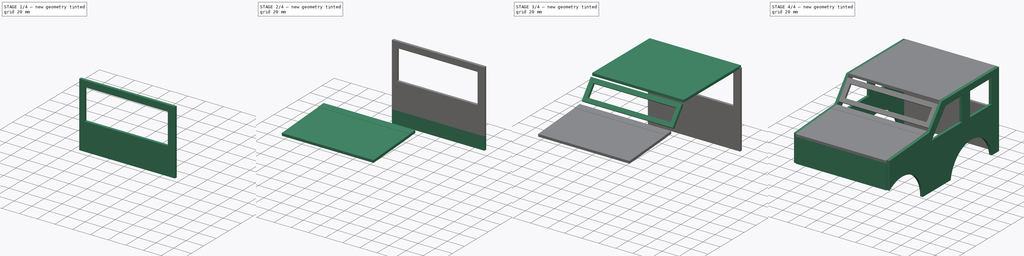
[diagram: build sequence overview — one tinted view per stage of 4, left to right]
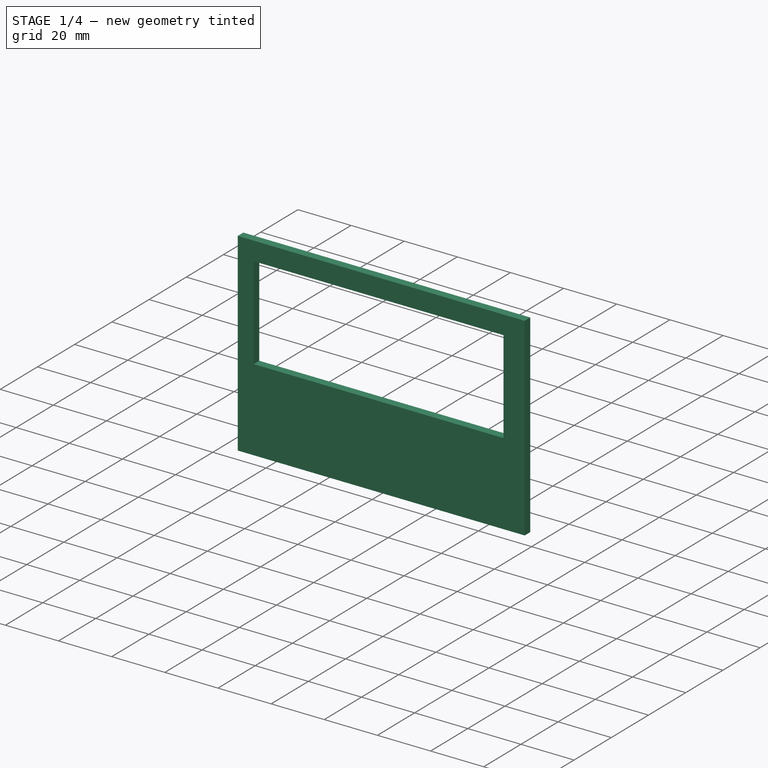
[diagram: stage 1 of 4 — iso view after this stage's code; geometry added in this stage tinted green]
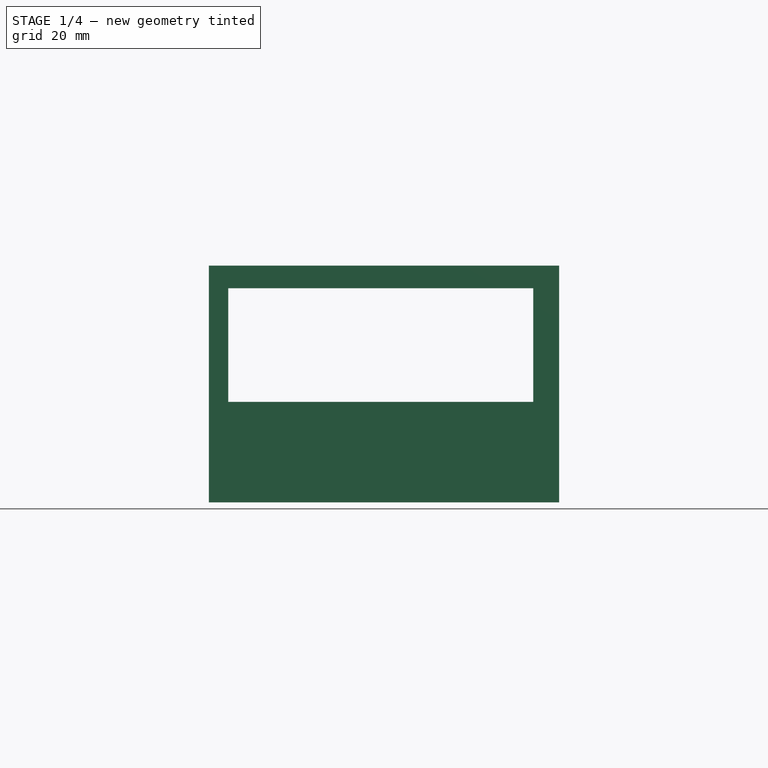
[diagram: stage 1 of 4 — front view after this stage's code; geometry added in this stage tinted green]
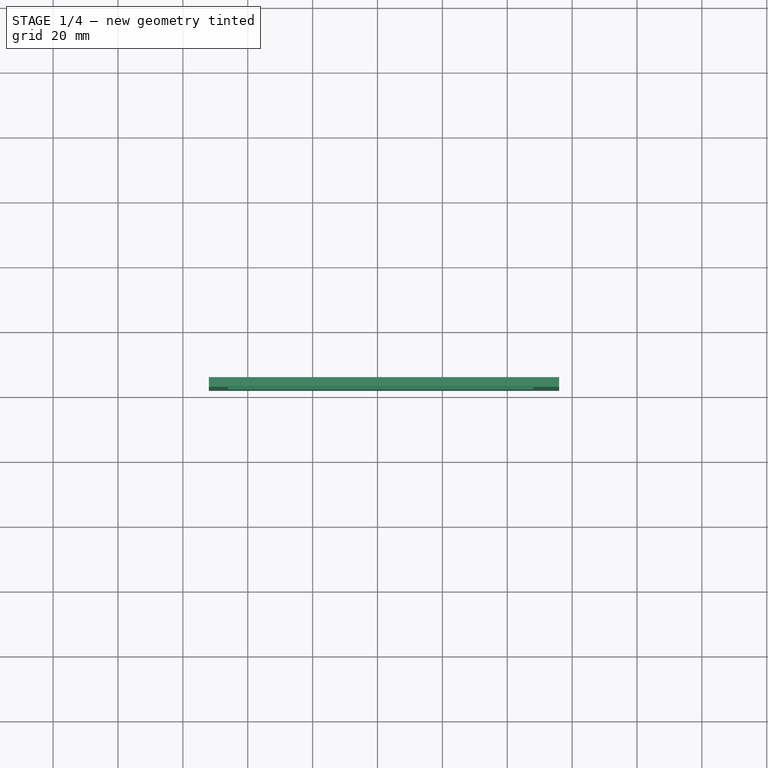
[diagram: stage 1 of 4 — top view after this stage's code; geometry added in this stage tinted green]
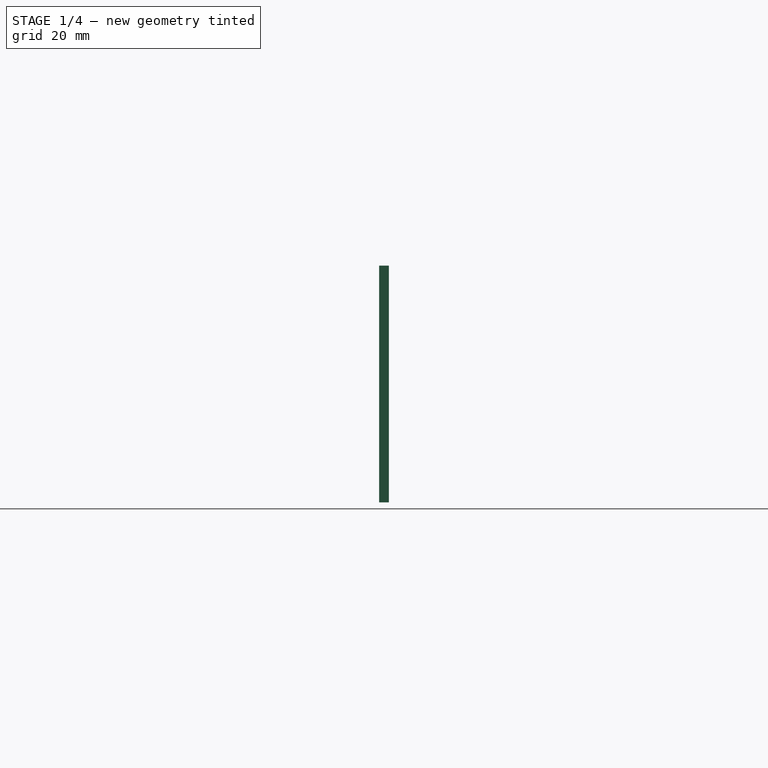
[diagram: stage 1 of 4 — right view after this stage's code; geometry added in this stage tinted green]
FCSTD DOCUMENT  (FreeCAD 0.18R16131 (Git))
Label: Esquema carroceria
License: All rights reserved
LicenseURL: http://en.wikipedia.org/wiki/All_rights_reserved
objects: Part::Box×6, Sketcher::SketchObject×5, Part::Extrusion×5, Part::Cut×2, PartDesign::Body×1, Part::Part2DObjectPython×1, Part::Feature×1
note: 21 computed .brp shape members not serialized (recipe doc carries the construction recipe); baked Part::Feature solids carry a one-line shape summary decoded from their .brp

FEATURE [Part::Box] Box004  label="Cubo004"
  AttacherType = Attacher::AttachEngine3D
  Height = 73
  Length = 108
  Placement = pos=(-52,0,-52) rot=(0,0,1;0rad)
  Width = 3
FEATURE [Part::Box] Box005  label="Cubo005"
  AttacherType = Attacher::AttachEngine3D
  Height = 35
  Length = 94
  Placement = pos=(-46,0,-21) rot=(0,0,1;0rad)
  Width = 3
FEATURE [Part::Cut] Cut001
  Base = -> Box004
  Placement = pos=(0,82,0) rot=(0,0,1;0rad)
  Tool = -> Box005
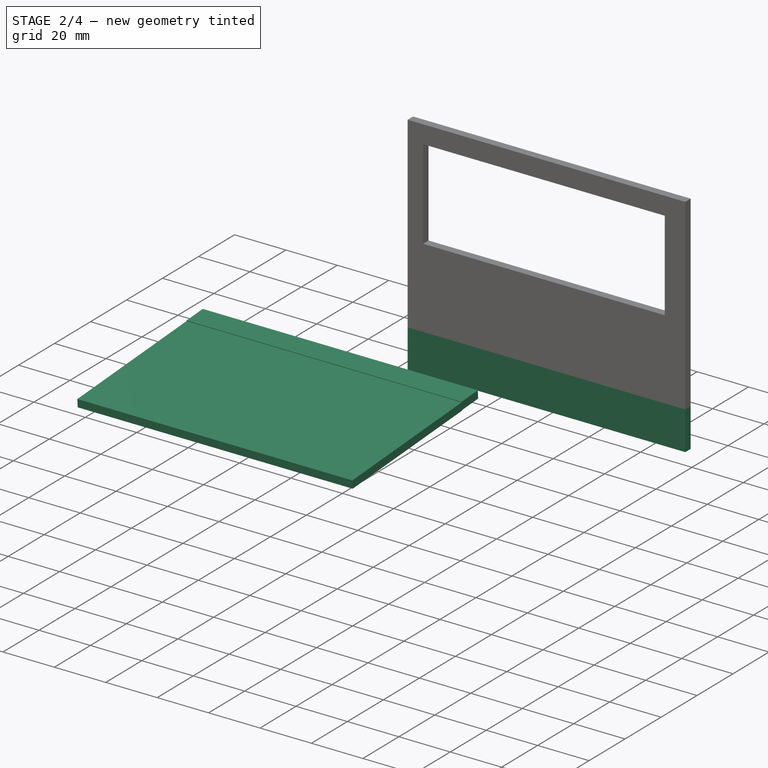
[diagram: stage 2 of 4 — iso view after this stage's code; geometry added in this stage tinted green]
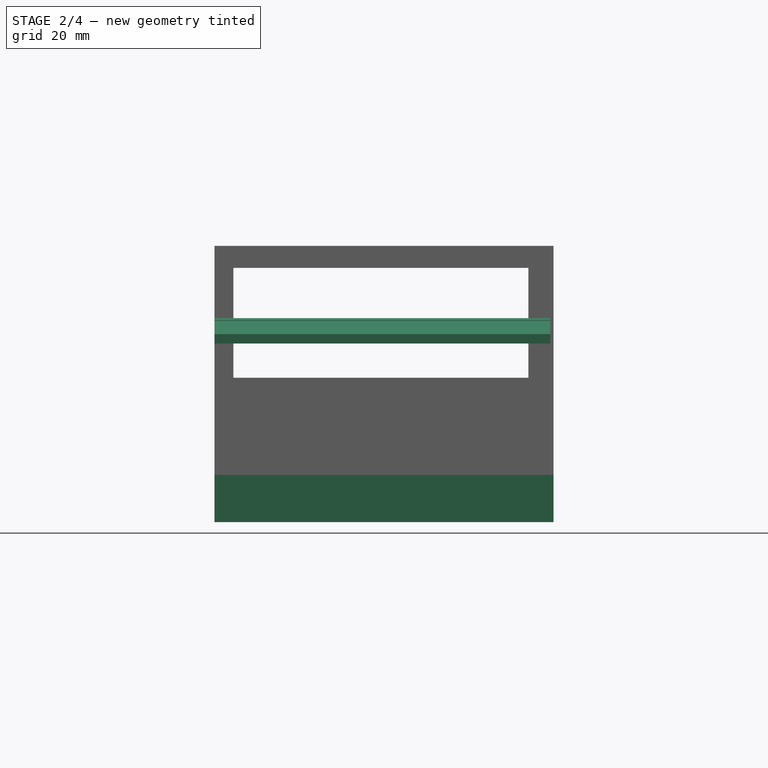
[diagram: stage 2 of 4 — front view after this stage's code; geometry added in this stage tinted green]
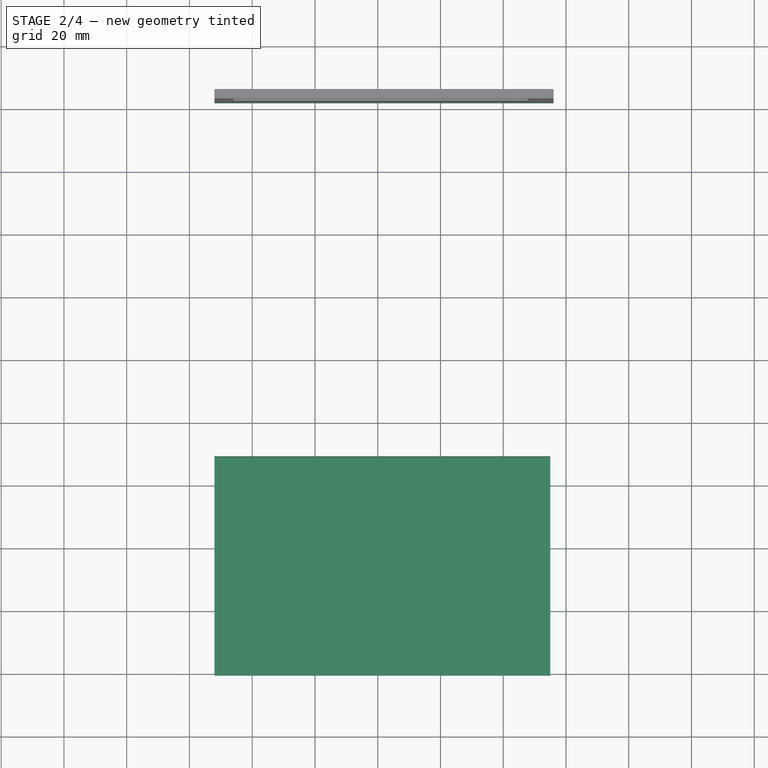
[diagram: stage 2 of 4 — top view after this stage's code; geometry added in this stage tinted green]
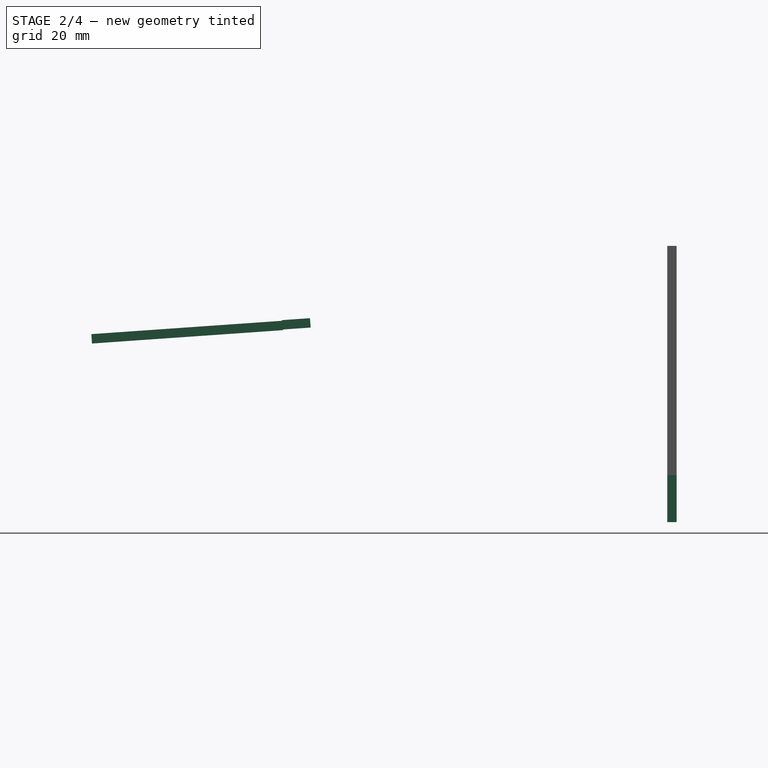
[diagram: stage 2 of 4 — right view after this stage's code; geometry added in this stage tinted green]
FEATURE [Part::Box] Box001  label="Cubo001"
  AttacherType = Attacher::AttachEngine3D
  Height = 3
  Length = 107
  Placement = pos=(-52,-101.333,-10.1005) rot=(1,0,0;0.069813rad)
  Width = 61
FEATURE [Part::Box] Box002  label="Cubo002"
  AttacherType = Attacher::AttachEngine3D
  Height = 3
  Length = 107
  Placement = pos=(-52,-40.6284,-5.641) rot=(1,0,0;0.069813rad)
  Width = 9
FEATURE [Part::Box] Box003  label="Cubo003"
  AttacherType = Attacher::AttachEngine3D
  Height = 15
  Length = 108
  Placement = pos=(-52,82,-67) rot=(0,0,1;0rad)
  Width = 3
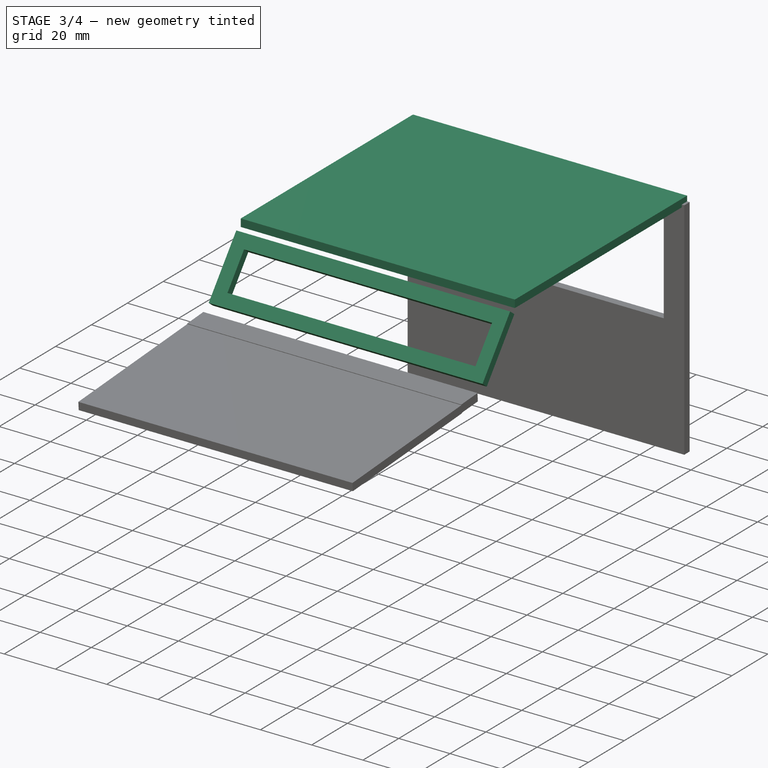
[diagram: stage 3 of 4 — iso view after this stage's code; geometry added in this stage tinted green]
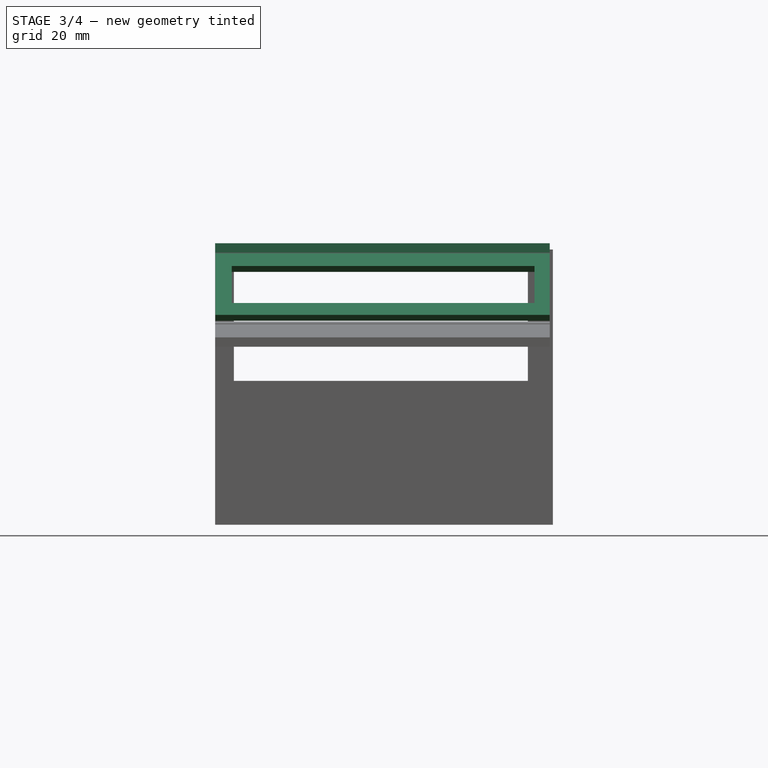
[diagram: stage 3 of 4 — front view after this stage's code; geometry added in this stage tinted green]
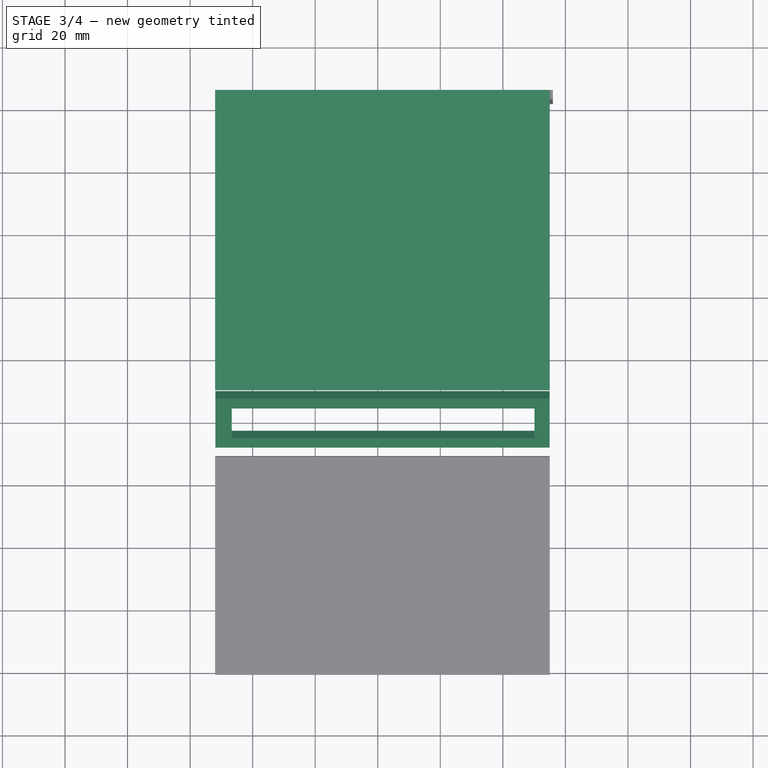
[diagram: stage 3 of 4 — top view after this stage's code; geometry added in this stage tinted green]
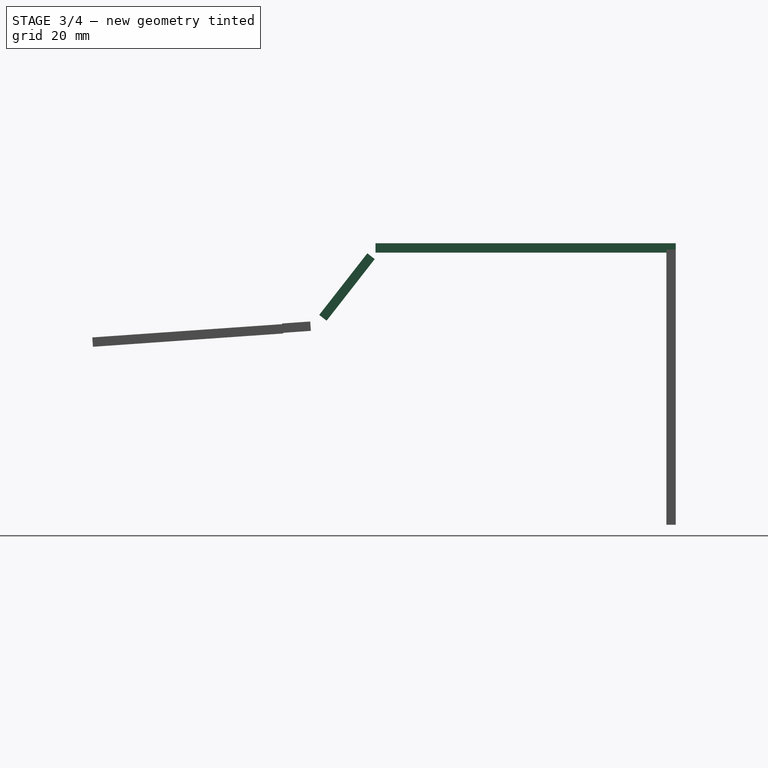
[diagram: stage 3 of 4 — right view after this stage's code; geometry added in this stage tinted green]
FEATURE [Part::Part2DObjectPython] Wire001  # Draft 2D object (typed FeaturePython)
  ChamferSize = 0
  Closed = false
  End = (-51.3404,-32.8804,-2.66469)
  FilletRadius = 0
  Length = 236.75
  MakeFace = false
  Placement = pos=(-51.9457,-32.8837,-2.66732) rot=(0,0,1;0rad)
  Points = (5) [(0,0,0),(-0.0542946,-11.1769,-0.768642),(106.946,-11.5577,-0.794739),(106.946,0.580196,0.464836),(0.605309,0.00328445,0.00263023)]
  Start = (-51.9457,-32.8837,-2.66732)
  Subdivisions = 0
FEATURE [Part::Feature] Wire
  shape: bbox 107 x 21.55 x 25.4 mm, 0 faces, 0 solids (baked)
FEATURE [Part::Box] Box  label="Cubo"
  AttacherType = Attacher::AttachEngine3D
  Height = 3
  Length = 107
  Placement = pos=(-52,-11,20) rot=(0,0,1;0rad)
  Width = 96
FEATURE [Sketcher::SketchObject] Sketch003
  MapMode = 5
  Placement = pos=(0,0,0) rot=(1,0,0;1.5708rad)
  Support = -> [XZ_Plane001]
  sketch-geometry (4):
    g0: LineSegment StartX=-51.9242 StartY=-10.5332 StartZ=0 EndX=54.9569 EndY=-10.5332 EndZ=0
    g1: LineSegment StartX=54.9569 StartY=-10.5332 StartZ=0 EndX=54.9569 EndY=-35.5332 EndZ=0
    g2: LineSegment StartX=54.9569 StartY=-35.5332 StartZ=0 EndX=-51.9242 EndY=-35.5332 EndZ=0
    g3: LineSegment StartX=-51.9242 StartY=-35.5332 StartZ=0 EndX=-51.9242 EndY=-10.5332 EndZ=0
  constraints (9):
    c: Coincident(g0,g1)
    c: Coincident(g1,g2)
    c: Coincident(g2,g3)
    c: Coincident(g3,g0)
    c: Horizontal(g0)
    c: Horizontal(g2)
    c: Vertical(g1)
    c: Vertical(g3)
    c: DistanceY(g1,g1) = 25
FEATURE [Part::Extrusion] Extrude003
  Base = -> Sketch003
  Dir = (0,-1,-2e-16)
  DirMode = 2
  FaceMakerClass = Part::FaceMakerBullseye
  LengthFwd = 3
  LengthRev = 0
  Placement = pos=(0,-28,33) rot=(0,0,1;0rad)
  Solid = true
  Symmetric = false
FEATURE [Sketcher::SketchObject] Sketch004
  MapMode = 5
  Placement = pos=(0,0,0) rot=(1,0,0;1.5708rad)
  Support = -> [XZ_Plane002]
  sketch-geometry (4):
    g0: LineSegment StartX=-44.6715 StartY=-17.7047 StartZ=0 EndX=52.1285 EndY=-17.7047 EndZ=0
    g1: LineSegment StartX=52.1285 StartY=-17.7047 StartZ=0 EndX=52.1285 EndY=-32.7047 EndZ=0
    g2: LineSegment StartX=52.1285 StartY=-32.7047 StartZ=0 EndX=-44.6715 EndY=-32.7047 EndZ=0
    g3: LineSegment StartX=-44.6715 StartY=-32.7047 StartZ=0 EndX=-44.6715 EndY=-17.7047 EndZ=0
  constraints (10):
    c: Coincident(g0,g1)
    c: Coincident(g1,g2)
    c: Coincident(g2,g3)
    c: Coincident(g3,g0)
    c: Horizontal(g0)
    c: Horizontal(g2)
    c: Vertical(g1)
    c: Vertical(g3)
    c: DistanceY(g1,g1) = 15
    c: DistanceX(g0,g0) = 96.8
FEATURE [Part::Extrusion] Extrude004
  Base = -> Sketch004
  Dir = (0,-1,-2e-16)
  DirMode = 2
  FaceMakerClass = Part::FaceMakerBullseye
  LengthFwd = 3
  LengthRev = 0
  Placement = pos=(-2,-28,35) rot=(0,0,1;0rad)
  Solid = true
  Symmetric = false
FEATURE [Part::Cut] Cut
  Base = -> Extrude003
  Placement = pos=(0,-3,-17) rot=(1,0,0;5.61996rad)
  Tool = -> Extrude004
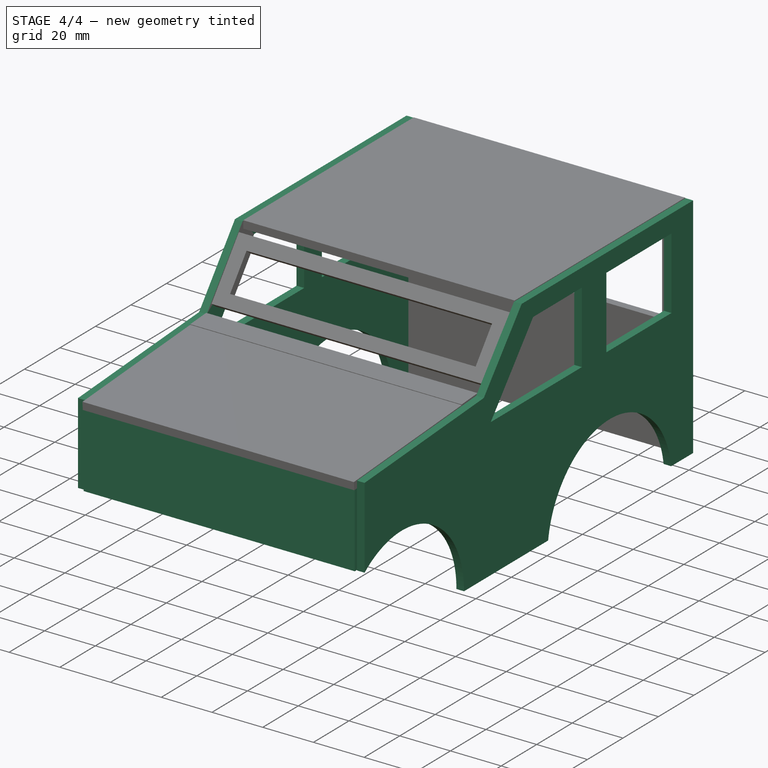
[diagram: stage 4 of 4 — iso view after this stage's code; geometry added in this stage tinted green]
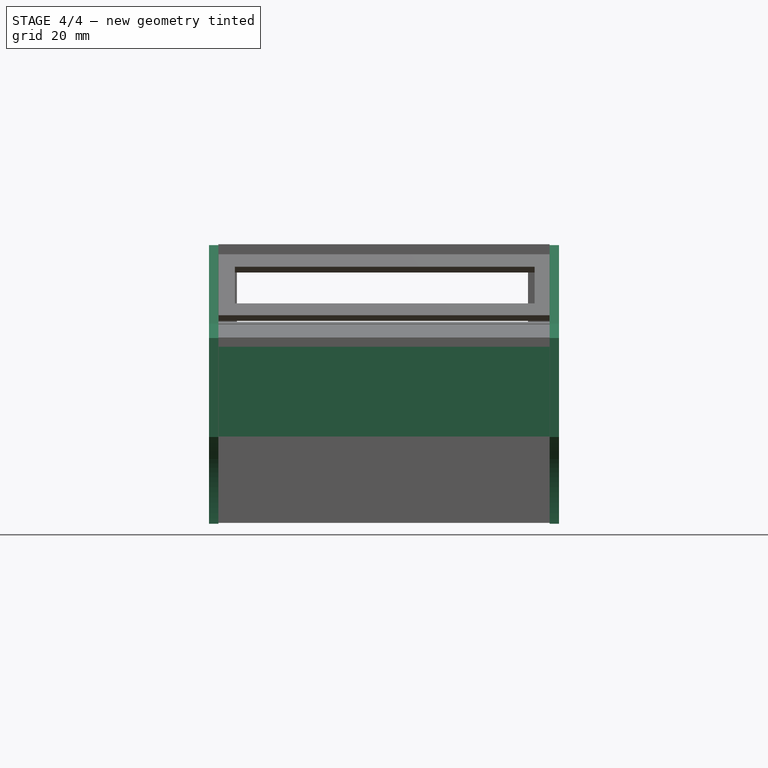
[diagram: stage 4 of 4 — front view after this stage's code; geometry added in this stage tinted green]
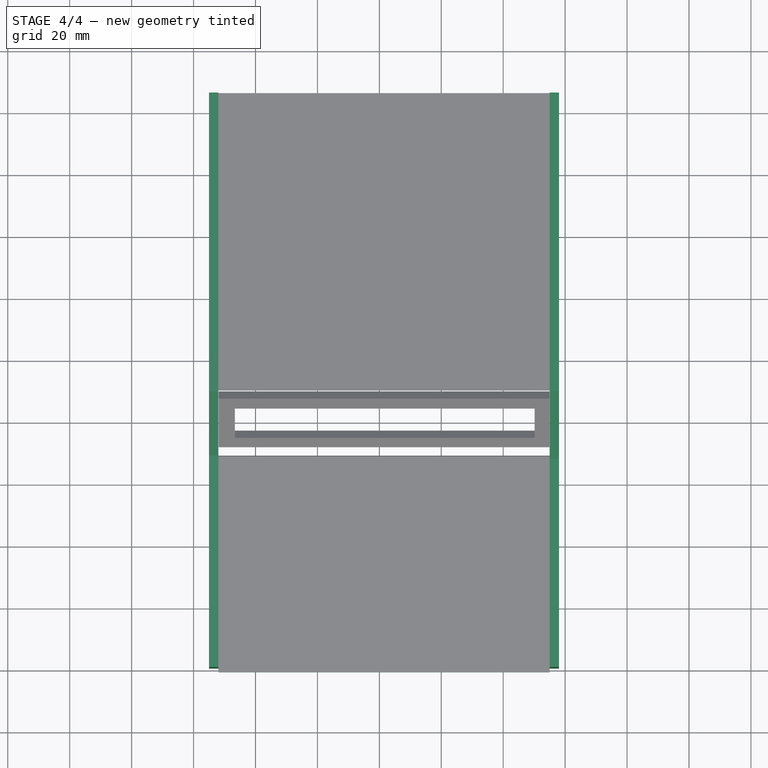
[diagram: stage 4 of 4 — top view after this stage's code; geometry added in this stage tinted green]
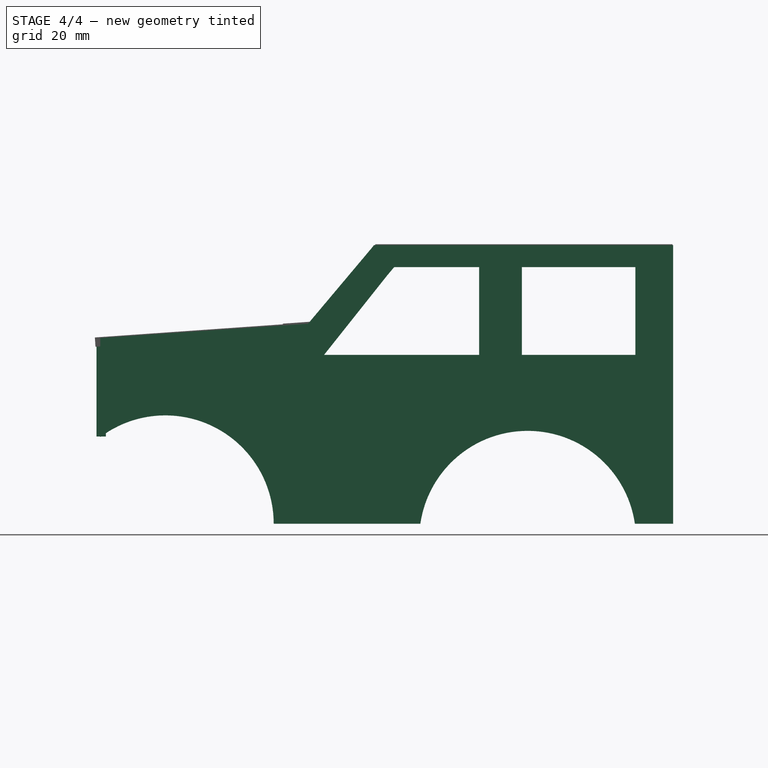
[diagram: stage 4 of 4 — right view after this stage's code; geometry added in this stage tinted green]
FEATURE [Sketcher::SketchObject] Sketch
  MapMode = 5
  Placement = pos=(0,0,0) rot=(0.57735,0.57735,0.57735;2.0944rad)
  Support = -> [YZ_Plane]
  sketch-geometry (26):
    g0: LineSegment StartX=-11.3855 StartY=22.7333 StartZ=0 EndX=85.2212 EndY=22.7333 EndZ=0
    g1: LineSegment StartX=85.2212 StartY=22.7333 StartZ=0 EndX=85.2212 EndY=-67.2667 EndZ=0
    g2: LineSegment StartX=85.2212 StartY=-67.2667 StartZ=0 EndX=72.8622 EndY=-67.2667 EndZ=0
    g3: LineSegment StartX=-99.7788 StartY=-39.2667 StartZ=0 EndX=-99.7788 EndY=-7.26667 EndZ=0
    g4: LineSegment StartX=-31.5572 StartY=-2.65373 StartZ=0 EndX=-99.7788 EndY=-7.26667 EndZ=0
    g5: LineSegment StartX=-31.5572 StartY=-2.65373 StartZ=0 EndX=-11.3855 EndY=22.7333 EndZ=0
    g6: ArcOfCircle CenterX=-78.7788 CenterY=-67.2667 CenterZ=0 NormalX=0 NormalY=0 NormalZ=1 AngleXU=0 Radius=35 StartAngle=-1.8e-15 EndAngle=2.2143
    g7: ArcOfCircle CenterX=38.2212 CenterY=-72.2667 CenterZ=0 NormalX=0 NormalY=0 NormalZ=1 AngleXU=0 Radius=35 StartAngle=0.143348 EndAngle=2.99825
    g8: LineSegment StartX=3.58017 StartY=-67.2667 StartZ=0 EndX=-43.7788 EndY=-67.2667 EndZ=0
    g9: LineSegment [constr] StartX=-111.659 StartY=-37.2667 StartZ=0 EndX=145.27 EndY=-37.2667 EndZ=0
    g10: LineSegment StartX=-4.88161 StartY=15.7631 StartZ=0 EndX=23.2908 EndY=15.7631 EndZ=0
    g11: LineSegment StartX=23.2908 StartY=15.7631 StartZ=0 EndX=23.2908 EndY=-14.2369 EndZ=0
    g12: LineSegment StartX=23.2908 StartY=-14.2369 StartZ=0 EndX=-28.7186 EndY=-14.2369 EndZ=0
    g13: LineSegment StartX=-28.7186 StartY=-14.2369 StartZ=0 EndX=-4.88161 EndY=15.7631 EndZ=0
    g14: LineSegment StartX=33.2908 StartY=15.7631 StartZ=0 EndX=33.2908 EndY=-14.2369 EndZ=0
    g15: LineSegment StartX=33.2908 StartY=-14.2369 StartZ=0 EndX=73.0066 EndY=-14.2369 EndZ=0
    g16: LineSegment StartX=73.0066 StartY=-14.2369 StartZ=0 EndX=73.0066 EndY=15.7631 EndZ=0
    g17: LineSegment StartX=73.0066 StartY=15.7631 StartZ=0 EndX=33.2908 EndY=15.7631 EndZ=0
    g18: LineSegment [constr] StartX=-10.6744 StartY=19.2065 StartZ=0 EndX=28.5559 EndY=19.2065 EndZ=0
    g19: LineSegment [constr] StartX=28.5559 StartY=-45.2432 StartZ=0 EndX=-5.71669 EndY=-45.2432 EndZ=0
    g20: LineSegment [constr] StartX=-5.71669 StartY=-45.2432 StartZ=0 EndX=-41.2826 EndY=-21.5326 EndZ=0
    g21: LineSegment [constr] StartX=-41.2826 StartY=-21.5326 StartZ=0 EndX=-10.6744 EndY=19.2065 EndZ=0
    g22: LineSegment [constr] StartX=28.5559 StartY=19.2065 StartZ=0 EndX=28.5559 EndY=-45.2432 EndZ=0
    g23: Circle [constr] CenterX=-78.7788 CenterY=-67.2667 CenterZ=0 NormalX=0 NormalY=0 NormalZ=1 AngleXU=0 Radius=27.5
    g24: Circle [constr] CenterX=38.2212 CenterY=-72.2667 CenterZ=0 NormalX=0 NormalY=0 NormalZ=1 AngleXU=0 Radius=27.5
    g25: LineSegment [constr] StartX=126.416 StartY=-45.2667 StartZ=0 EndX=-97.5413 EndY=-45.2667 EndZ=0
  constraints (60):
    c: Coincident(g0,g1)
    c: Coincident(g1,g2)
    c: Horizontal(g0)
    c: Horizontal(g2)
    c: Vertical(g1)
    c: Vertical(g3)
    c: DistanceY(g1,g1) = 90
    c: Coincident(g5,g4)
    c: Coincident(g3,g4)
    c: Coincident(g0,g5)
    c: PointOnObject(g6,g2)
    c: PointOnObject(g6,g2)
    c: Radius(g6) = 35
    c: Equal(g7,g6)
    c: DistanceX(g3,g0) = 185
    c: Coincident(g8,g7)
    c: Tangent(g2,g8)
    c: PointOnObject(g8,g6)
    c: DistanceX(g7,g1) = 47
    c: Coincident(g2,g7)
    c: Horizontal(g9)
    c: Tangent(g7,g9)
    c: DistanceY(g1,g9) = 30
    c: Coincident(g3,g6)
    c: Horizontal(g10)
    c: Coincident(g10,g11)
    c: Vertical(g11)
    c: Coincident(g11,g12)
    c: Horizontal(g12)
    c: Coincident(g12,g13)
    c: Coincident(g13,g10)
    c: Vertical(g14)
    c: Coincident(g14,g15)
    c: Horizontal(g15)
    c: Coincident(g15,g16)
    c: Vertical(g16)
    c: Coincident(g16,g17)
    c: Coincident(g17,g14)
    c: Horizontal(g17)
    c: Equal(g11,g14)
    c: Parallel(g13,g5)
    c: Horizontal(g18)
    c: Horizontal(g19)
    c: Coincident(g19,g20)
    c: Coincident(g20,g21)
    c: Coincident(g21,g18)
    c: Vertical(g22)
    c: Coincident(g23,g6)
    c: Coincident(g24,g7)
    c: Radius(g23) = 27.5
    c: Equal(g23,g24)
    c: Coincident(g18,g22)
    c: Coincident(g19,g22)
    c: Horizontal(g25)
    c: DistanceY(g7,g25) = 27
    c: DistanceX(g6,g7) = 117
    c: DistanceY(g6,g3) = 60
    c: DistanceY(g14,g10) = 0
    c: DistanceY(g16,g16) = 30
    c: DistanceX(g10,g14) = 10
FEATURE [Part::Extrusion] Extrude
  Base = -> Sketch
  Dir = (1,-2e-16,3e-16)
  DirMode = 2
  FaceMakerClass = Part::FaceMakerBullseye
  LengthFwd = 3
  LengthRev = 0
  Placement = pos=(-55,0,0) rot=(0,0,1;0rad)
  Solid = true
  Symmetric = false
FEATURE [Sketcher::SketchObject] Sketch001
  MapMode = 5
  Placement = pos=(0,0,0) rot=(0.57735,0.57735,0.57735;2.0944rad)
  Support = -> [YZ_Plane001]
  sketch-geometry (26):
    g0: LineSegment StartX=-11.3298 StartY=22.7338 StartZ=0 EndX=85.2202 EndY=22.7338 EndZ=0
    g1: LineSegment StartX=85.2202 StartY=22.7338 StartZ=0 EndX=85.2202 EndY=-67.2662 EndZ=0
    g2: LineSegment StartX=85.2202 StartY=-67.2662 StartZ=0 EndX=72.8612 EndY=-67.2662 EndZ=0
    g3: LineSegment StartX=-99.7798 StartY=-39.2662 StartZ=0 EndX=-99.7798 EndY=-7.26624 EndZ=0
    g4: LineSegment StartX=-32.683 StartY=-2.65374 StartZ=0 EndX=-99.7798 EndY=-7.26624 EndZ=0
    g5: LineSegment StartX=-32.683 StartY=-2.65374 StartZ=0 EndX=-11.3298 EndY=22.7338 EndZ=0
    g6: ArcOfCircle CenterX=-78.7798 CenterY=-67.2662 CenterZ=0 NormalX=0 NormalY=0 NormalZ=1 AngleXU=0 Radius=35 StartAngle=2e-16 EndAngle=2.2143
    g7: ArcOfCircle CenterX=38.2202 CenterY=-72.2662 CenterZ=0 NormalX=0 NormalY=0 NormalZ=1 AngleXU=0 Radius=35 StartAngle=0.143348 EndAngle=2.99825
    g8: LineSegment StartX=3.57915 StartY=-67.2662 StartZ=0 EndX=-43.7798 EndY=-67.2662 EndZ=0
    g9: LineSegment [constr] StartX=-111.659 StartY=-37.2662 StartZ=0 EndX=145.27 EndY=-37.2662 EndZ=0
    g10: LineSegment StartX=-4.8816 StartY=15.6091 StartZ=0 EndX=22.5431 EndY=15.6091 EndZ=0
    g11: LineSegment StartX=22.5431 StartY=15.6091 StartZ=0 EndX=22.5431 EndY=-12.7315 EndZ=0
    g12: LineSegment StartX=22.5431 StartY=-12.7315 StartZ=0 EndX=-28.7187 EndY=-12.7315 EndZ=0
    g13: LineSegment StartX=-28.7187 StartY=-12.7315 StartZ=0 EndX=-4.8816 EndY=15.6091 EndZ=0
    g14: LineSegment StartX=36.3484 StartY=15.6091 StartZ=0 EndX=36.3484 EndY=-12.7315 EndZ=0
    g15: LineSegment StartX=36.3484 StartY=-12.7315 StartZ=0 EndX=73.0066 EndY=-12.7315 EndZ=0
    g16: LineSegment StartX=73.0066 StartY=-12.7315 StartZ=0 EndX=73.0066 EndY=15.6091 EndZ=0
    g17: LineSegment StartX=73.0066 StartY=15.6091 StartZ=0 EndX=36.3484 EndY=15.6091 EndZ=0
    g18: LineSegment [constr] StartX=-10.6744 StartY=19.2065 StartZ=0 EndX=28.5559 EndY=19.2065 EndZ=0
    g19: LineSegment [constr] StartX=28.5559 StartY=-45.2432 StartZ=0 EndX=-5.71669 EndY=-45.2432 EndZ=0
    g20: LineSegment [constr] StartX=-5.71669 StartY=-45.2432 StartZ=0 EndX=-41.2826 EndY=-21.5326 EndZ=0
    g21: LineSegment [constr] StartX=-41.2826 StartY=-21.5326 StartZ=0 EndX=-10.6744 EndY=19.2065 EndZ=0
    g22: LineSegment [constr] StartX=28.5559 StartY=19.2065 StartZ=0 EndX=28.5559 EndY=-45.2432 EndZ=0
    g23: Circle [constr] CenterX=-78.7798 CenterY=-67.2662 CenterZ=0 NormalX=0 NormalY=0 NormalZ=1 AngleXU=0 Radius=27.5
    g24: Circle [constr] CenterX=38.2202 CenterY=-72.2662 CenterZ=0 NormalX=0 NormalY=0 NormalZ=1 AngleXU=0 Radius=27.5
    g25: LineSegment [constr] StartX=126.416 StartY=-45.2662 StartZ=0 EndX=-97.5413 EndY=-45.2662 EndZ=0
  constraints (59):
    c: Coincident(g0,g1)
    c: Coincident(g1,g2)
    c: Horizontal(g0)
    c: Horizontal(g2)
    c: Vertical(g1)
    c: Vertical(g3)
    c: DistanceY(g1,g1) = 90
    c: Coincident(g5,g4)
    c: Coincident(g3,g4)
    c: Coincident(g0,g5)
    c: PointOnObject(g6,g2)
    c: PointOnObject(g6,g2)
    c: Radius(g6) = 35
    c: Equal(g7,g6)
    c: DistanceX(g3,g0) = 185
    c: Coincident(g8,g7)
    c: Tangent(g2,g8)
    c: PointOnObject(g8,g6)
    c: DistanceX(g7,g1) = 47
    c: Coincident(g2,g7)
    c: Horizontal(g9)
    c: Tangent(g7,g9)
    c: DistanceY(g1,g9) = 30
    c: Coincident(g3,g6)
    c: Horizontal(g10)
    c: Coincident(g10,g11)
    c: Vertical(g11)
    c: Coincident(g11,g12)
    c: Horizontal(g12)
    c: Coincident(g12,g13)
    c: Coincident(g13,g10)
    c: Vertical(g14)
    c: Coincident(g14,g15)
    c: Horizontal(g15)
    c: Coincident(g15,g16)
    c: Vertical(g16)
    c: Coincident(g16,g17)
    c: Coincident(g17,g14)
    c: Horizontal(g17)
    c: Equal(g11,g14)
    c: Parallel(g13,g5)
    c: Horizontal(g18)
    c: Horizontal(g19)
    c: Coincident(g19,g20)
    c: Coincident(g20,g21)
    c: Coincident(g21,g18)
    c: Vertical(g22)
    c: Coincident(g23,g6)
    c: Coincident(g24,g7)
    c: Radius(g23) = 27.5
    c: Equal(g23,g24)
    c: Coincident(g18,g22)
    c: Coincident(g19,g22)
    c: Horizontal(g25)
    c: DistanceY(g7,g25) = 27
    c: DistanceX(g6,g7) = 117
    c: DistanceY(g6,g3) = 60
    c: DistanceY(g14,g10) = 0
    c: DistanceX(g0,g0) = 96.55
FEATURE [Part::Extrusion] Extrude001
  Base = -> Sketch001
  Dir = (1,-2e-16,3e-16)
  DirMode = 2
  FaceMakerClass = Part::FaceMakerBullseye
  LengthFwd = 3
  LengthRev = 0
  Placement = pos=(55,0,0) rot=(0,0,1;0rad)
  Solid = true
  Symmetric = false
FEATURE [Sketcher::SketchObject] Sketch002
  MapMode = 5
  Placement = pos=(0,0,0) rot=(1,0,0;1.5708rad)
  Support = -> [XZ_Plane]
  sketch-geometry (4):
    g0: LineSegment StartX=-51.9242 StartY=-7.3248 StartZ=0 EndX=54.9569 EndY=-7.3248 EndZ=0
    g1: LineSegment StartX=54.9569 StartY=-7.3248 StartZ=0 EndX=54.9569 EndY=-39.1038 EndZ=0
    g2: LineSegment StartX=54.9569 StartY=-39.1038 StartZ=0 EndX=-51.9242 EndY=-39.1038 EndZ=0
    g3: LineSegment StartX=-51.9242 StartY=-39.1038 StartZ=0 EndX=-51.9242 EndY=-7.3248 EndZ=0
  constraints (8):
    c: Coincident(g0,g1)
    c: Coincident(g1,g2)
    c: Coincident(g2,g3)
    c: Coincident(g3,g0)
    c: Horizontal(g0)
    c: Horizontal(g2)
    c: Vertical(g1)
    c: Vertical(g3)
FEATURE [PartDesign::Body] Body
  Group = -> [Sketch,Sketch002]
  Origin = -> Origin
FEATURE [Part::Extrusion] Extrude002
  Base = -> Sketch002
  Dir = (0,-1,2e-16)
  DirMode = 2
  FaceMakerClass = Part::FaceMakerBullseye
  LengthFwd = 3
  LengthRev = 0
  Placement = pos=(0,-98,0) rot=(0,0,1;0rad)
  Solid = true
  Symmetric = false
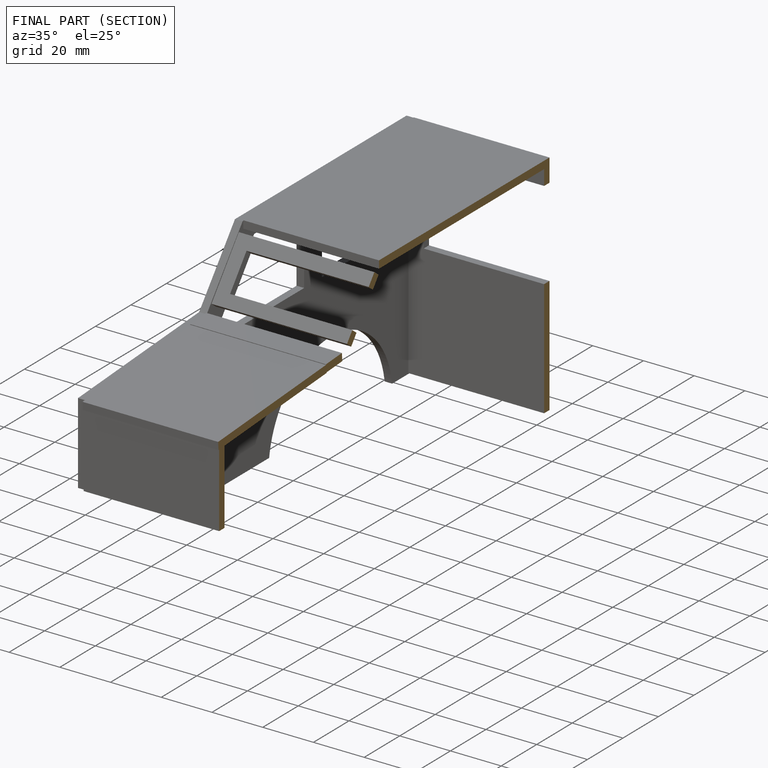
[diagram: finished part — half-section view (interior)]
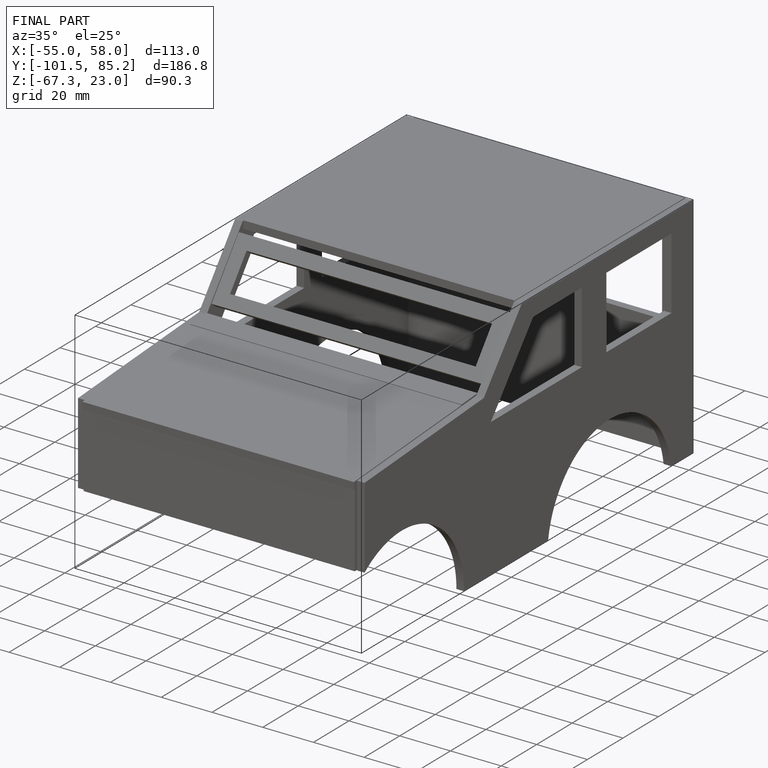
[diagram: finished part — iso view with bounding-box wireframe]
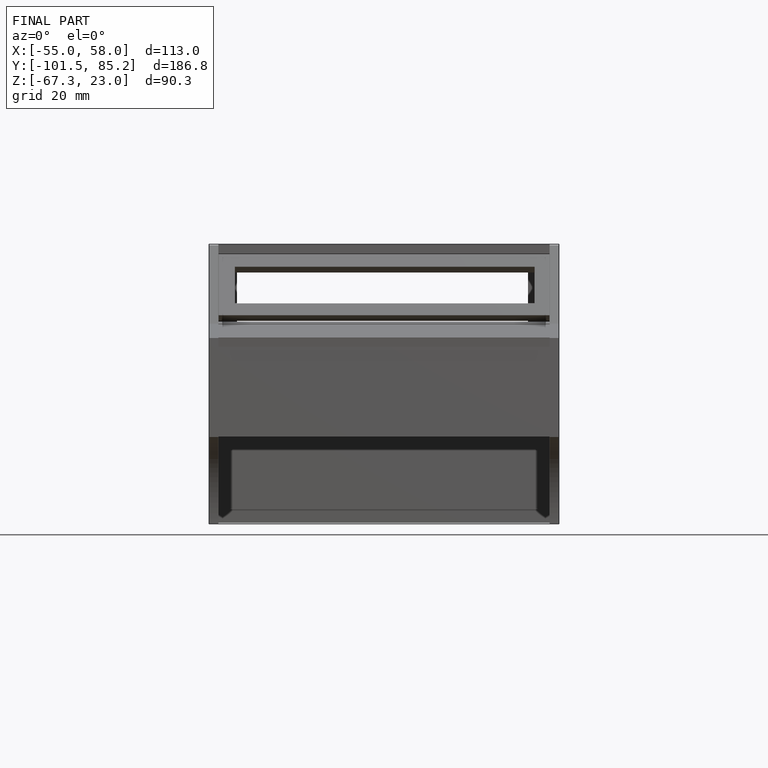
[diagram: finished part — front view with bounding-box wireframe]
